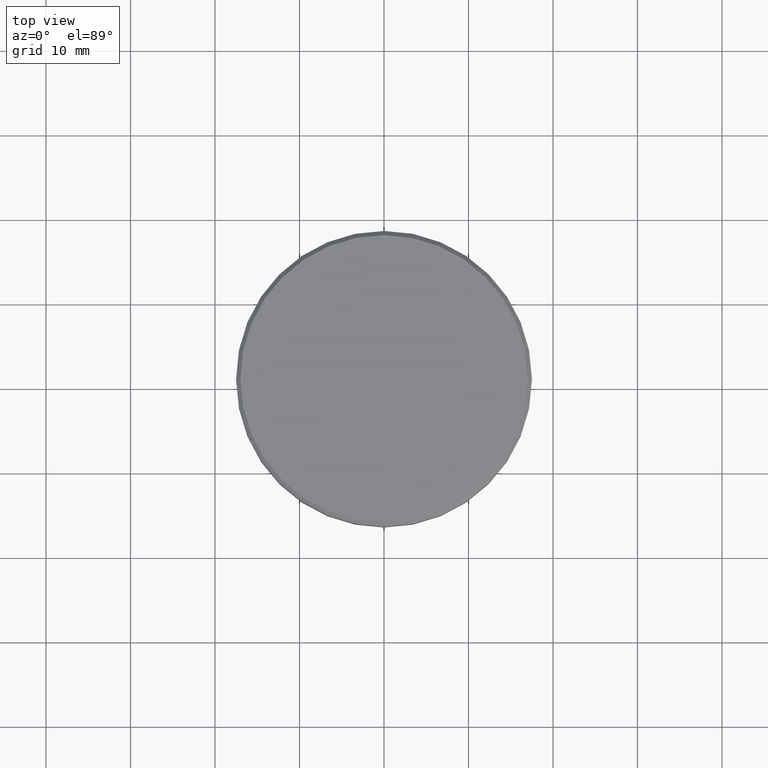
[diagram: clean part render]
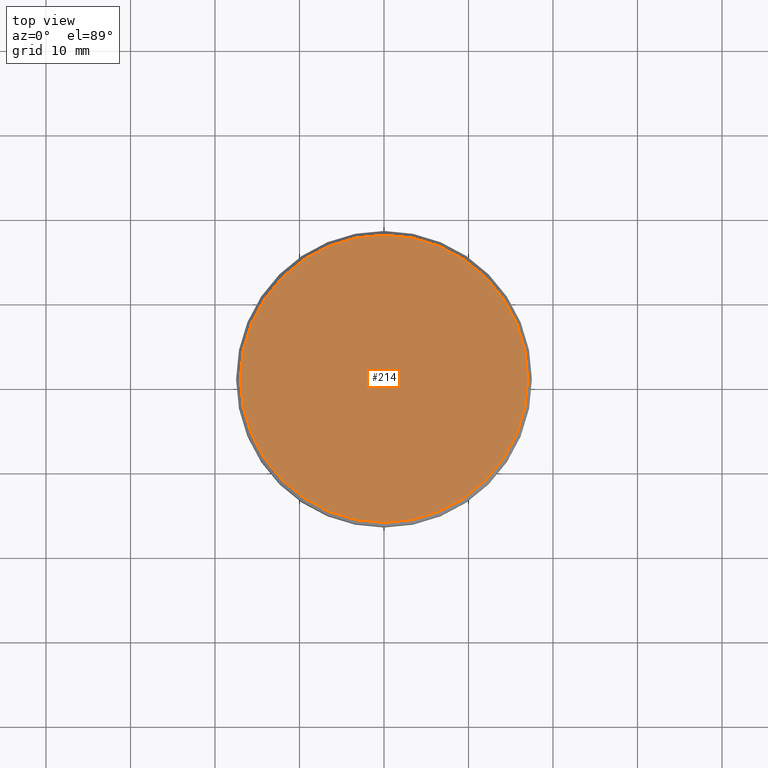
[diagram: same view with one face highlighted and labeled with its STEP entity id]
A machine part, top view. The second image highlights one B-rep face of the part: STEP entity #214.
In plain terms, the highlighted planar face has unit normal (0, -0, 1).
Its self-contained STEP definition (entity closure, byte-faithful):
#15 = DIRECTION ( 'NONE',  ( 0.000000000000000000, -0.000000000000000000, 1.000000000000000000 ) ) ;
#17 = VERTEX_POINT ( 'NONE', #31 ) ;
#31 = CARTESIAN_POINT ( 'NONE',  ( -16.99999999999999289, 0.000000000000000000, 0.000000000000000000 ) ) ;
#47 = AXIS2_PLACEMENT_3D ( 'NONE', #1102, #15, #551 ) ;
#69 = CIRCLE ( 'NONE', #275, 16.99999999999999289 ) ;
#210 = EDGE_LOOP ( 'NONE', ( #936, #481 ) ) ;
#214 = ADVANCED_FACE ( 'NONE', ( #307 ), #377, .T. ) ;
#252 = AXIS2_PLACEMENT_3D ( 'NONE', #887, #315, #605 ) ;
#275 = AXIS2_PLACEMENT_3D ( 'NONE', #931, #735, #1091 ) ;
#290 = CIRCLE ( 'NONE', #252, 16.99999999999999289 ) ;
#307 = FACE_OUTER_BOUND ( 'NONE', #210, .T. ) ;
#315 = DIRECTION ( 'NONE',  ( -0.000000000000000000, -0.000000000000000000, 1.000000000000000000 ) ) ;
#377 = PLANE ( 'NONE',  #47 ) ;
#417 = VERTEX_POINT ( 'NONE', #986 ) ;
#481 = ORIENTED_EDGE ( 'NONE', *, *, #695, .T. ) ;
#551 = DIRECTION ( 'NONE',  ( 1.000000000000000000, 0.000000000000000000, 0.000000000000000000 ) ) ;
#605 = DIRECTION ( 'NONE',  ( 1.000000000000000000, 0.000000000000000000, 0.000000000000000000 ) ) ;
#695 = EDGE_CURVE ( 'NONE', #417, #17, #69, .T. ) ;
#735 = DIRECTION ( 'NONE',  ( -0.000000000000000000, -0.000000000000000000, 1.000000000000000000 ) ) ;
#801 = EDGE_CURVE ( 'NONE', #17, #417, #290, .T. ) ;
#887 = CARTESIAN_POINT ( 'NONE',  ( 0.000000000000000000, 0.000000000000000000, 0.000000000000000000 ) ) ;
#931 = CARTESIAN_POINT ( 'NONE',  ( 0.000000000000000000, 0.000000000000000000, 0.000000000000000000 ) ) ;
#936 = ORIENTED_EDGE ( 'NONE', *, *, #801, .T. ) ;
#986 = CARTESIAN_POINT ( 'NONE',  ( 16.99999999999999289, 2.112515728529184067E-15, 0.000000000000000000 ) ) ;
#1091 = DIRECTION ( 'NONE',  ( 1.000000000000000000, 0.000000000000000000, 0.000000000000000000 ) ) ;
#1102 = CARTESIAN_POINT ( 'NONE',  ( 0.000000000000000000, 0.000000000000000000, 0.000000000000000000 ) ) ;